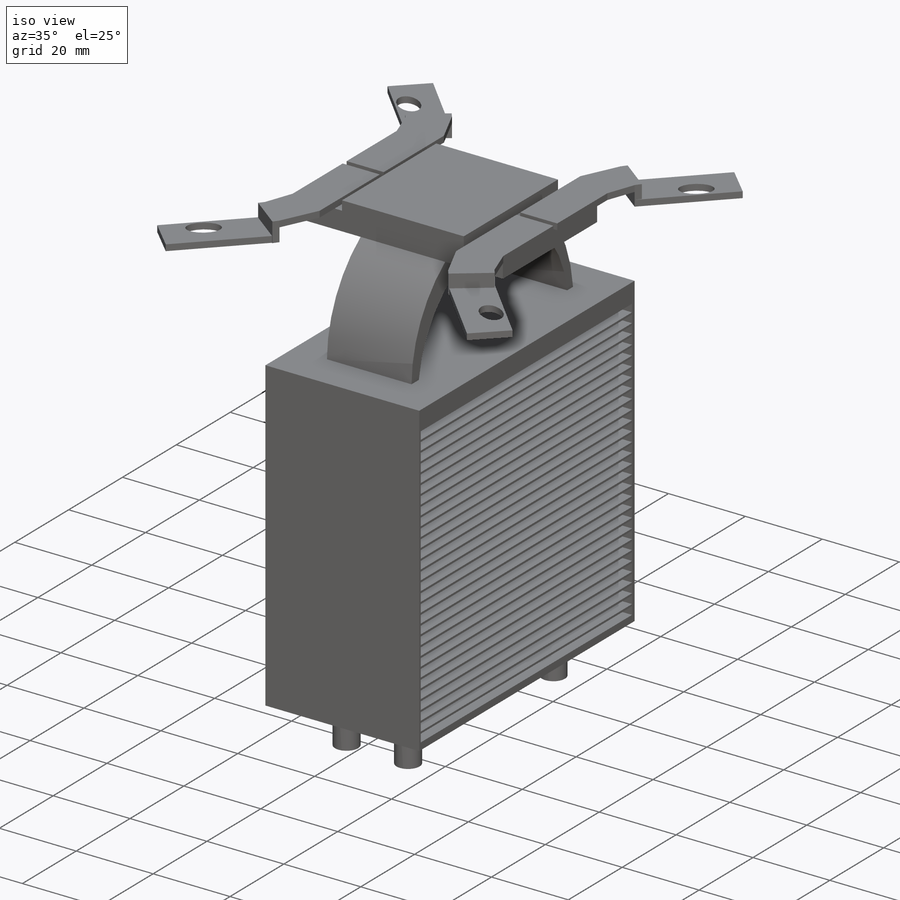
[diagram: iso view]
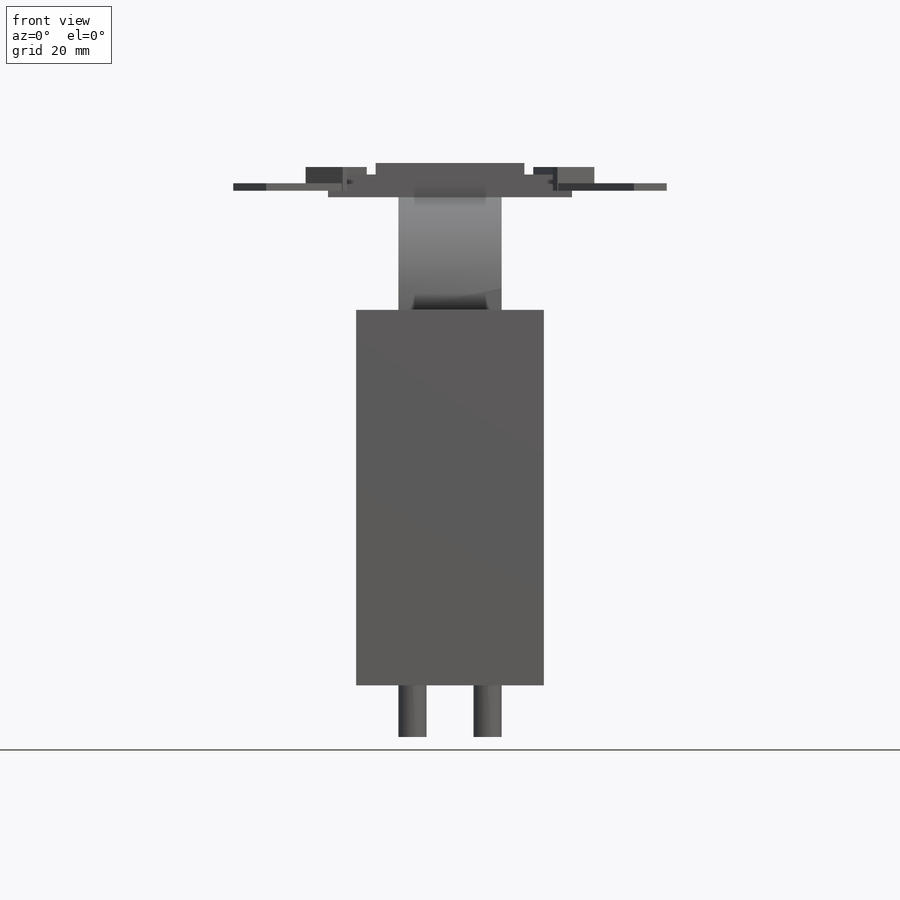
[diagram: front view]
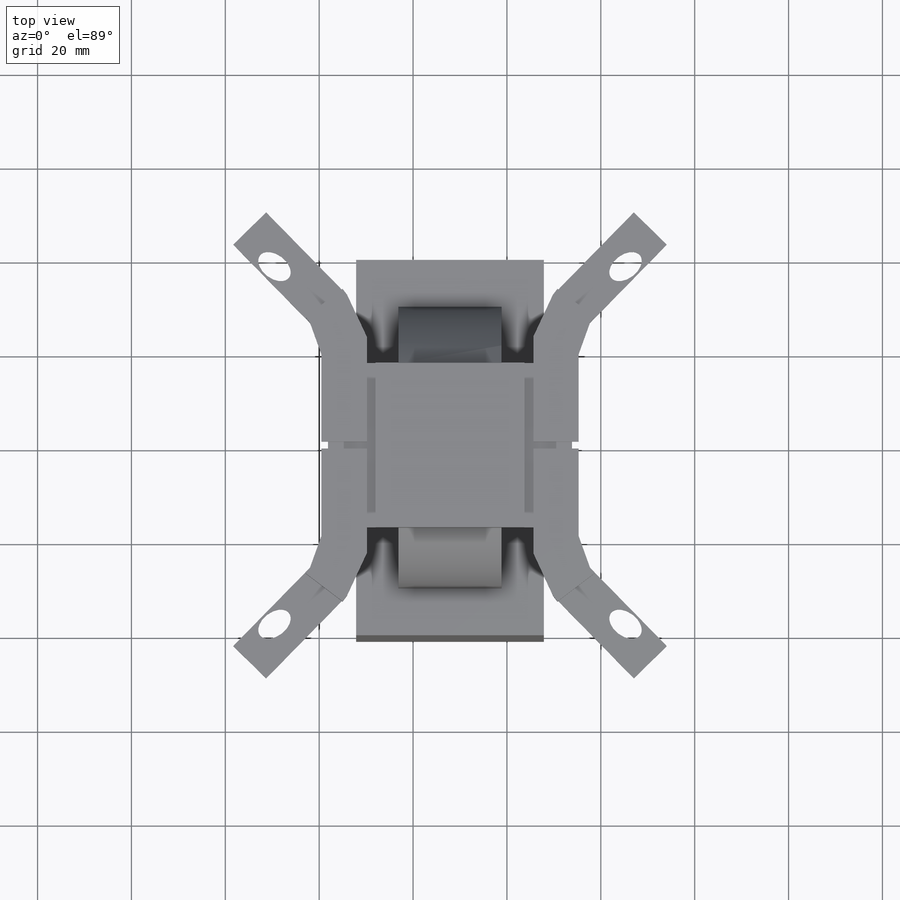
[diagram: top view]
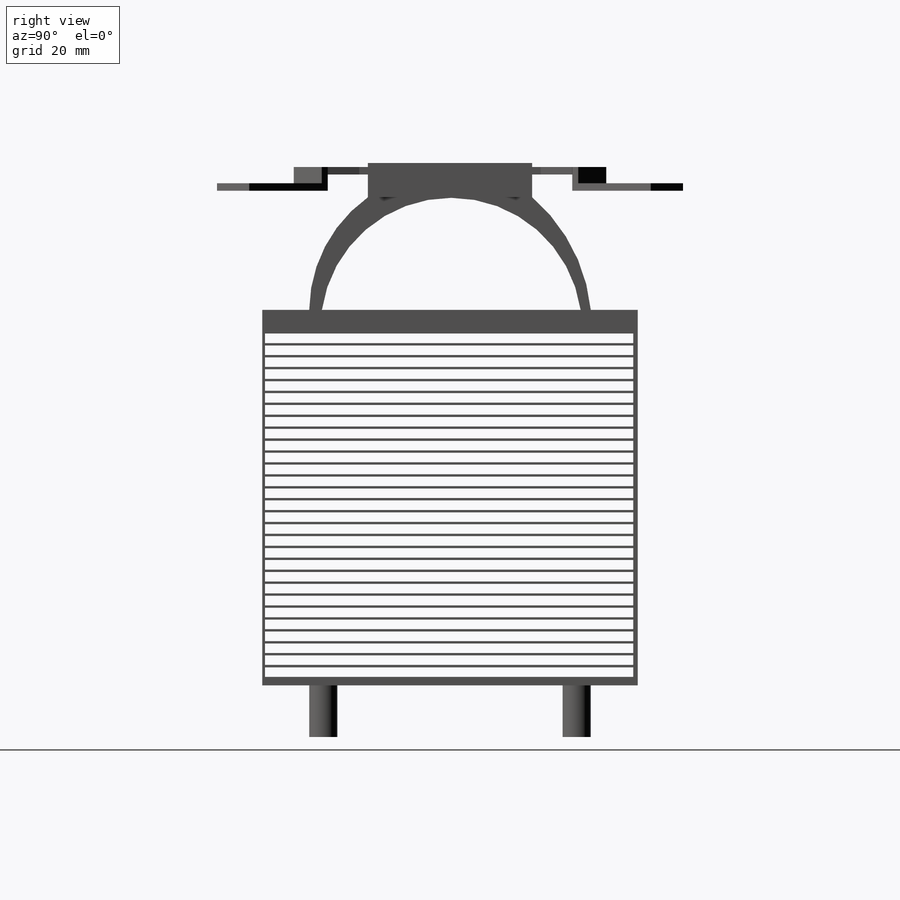
[diagram: right view]
SOLIDWORKS PART (.sldprt)
format: sldprt  version: not decoded by parser v0  size: 1,292,288 bytes
history: native  units: mm
features: sketch x14, extrude x8, cut_extrude x4, plane x2, mirror x2, material x1 (+11 scaffold rows collapsed)
feature tree (42):
  scaffold x11  (default folders/planes/origin — collapsed)
  material  "Material <not specified>"
  sketch  "Sketch1"  dims[D1=40.0mm D2=80.0mm]
  extrude  "Boss-Extrude1"  Depth=80mm
  sketch  "Sketch2"  dims[D1=12.0mm D2=12.0mm D3=13.0mm D4=13.0mm D5=13.0mm D6=13.0mm D7=12.0mm D8=12.0mm]
  extrude  "Boss-Extrude2"  Depth=11mm
  sketch  "Sketch3"  dims[D1=13.0mm D2=13.0mm D3=13.0mm D4=13.0mm D5=12.0mm D6=12.0mm D7=12.0mm D8=12.0mm]
  sketch  "Sketch7"
  extrude  "Boss-Extrude4"  Depth=24mm
  sketch  "Sketch8"  dims[D1=52.0mm D2=35.0mm D3=40.0mm D4=20.0mm D5=20.0mm]
  extrude  "Boss-Extrude5"  Depth=4.86mm
  sketch  "Sketch9"  dims[c1.D1=10.16mm c1.D2=10.16mm c1.D3=31.68mm c2.D3=90.0deg c3.D3=31.68mm c3.D4=35.0mm c3.D5=31.68mm]
  extrude  "Boss-Extrude6"  Depth=2.4384mm
  sketch  "Sketch10"  dims[c1.D1=1.905mm c1.D2=9.779mm c1.D3=315.0deg c2.D3=9.8806mm c2.D4=7.112mm c2.D5=0.725mm c2.D6=90.0deg c3.D6=~11.733445mm c3.D7=~11.733445mm c4.D6=15.84mm c4.D7=18.6182mm c4.D8=22.352mm c4.D9=135.0deg c5.D9=17.5mm c5.D10=15.84mm c6.D10=135.0deg c7.D10=18.6182mm c7.D2=9.906mm c8.D10=~16.01411mm c8.D11=~6.486457deg c9.D10=35.0deg c10.D10=9.652mm c10.D11=10.16mm]
  extrude  "Boss-Extrude9"  Depth=1.6002mm
  sketch  "Sketch13"  dims[D1=5.08mm]
  extrude  "Boss-Extrude10"  Depth=1.6002mm
  sketch  "Sketch12"  dims[D1=2.032mm D2=29.0]
  cut_extrude  "Cut-Extrude1"  [1 undecoded]
  sketch  "Sketch15"  dims[D1=5.08mm D2=~24.659006mm D3=~9.829063mm D4=~23.426793mm D5=9.906mm D6=~6.813289mm D7=~9.492645mm]
  extrude  "Boss-Extrude11"  Depth=1.6002mm
  sketch  "Sketch11"  dims[c1.D1=90.0deg c2.D1=15.84mm c2.D2=76.2mm c2.D3=74.803mm c2.D4=135.0deg c3.D4=~4.400218mm]
  plane  "Plane1"
  mirror  "Mirror1"
  plane  "Plane2"
  mirror  "Mirror2"
  sketch  "Sketch22"
  cut_extrude  "Cut-Extrude15"  Depth=25.4mm
  sketch  "Sketch24"
  cut_extrude  "Cut-Extrude16"  Depth=25.4mm
  sketch  "Sketch25"
  cut_extrude  "Cut-Extrude17"  Depth=25.4mm
decode coverage: 21 of 28 modeling features carry decoded parameters
note: ~ marks probable driven/reference dimensions
note: 1 parameter value undecoded
note: suppression state not decoded; provenance and decode notes live in map.json
